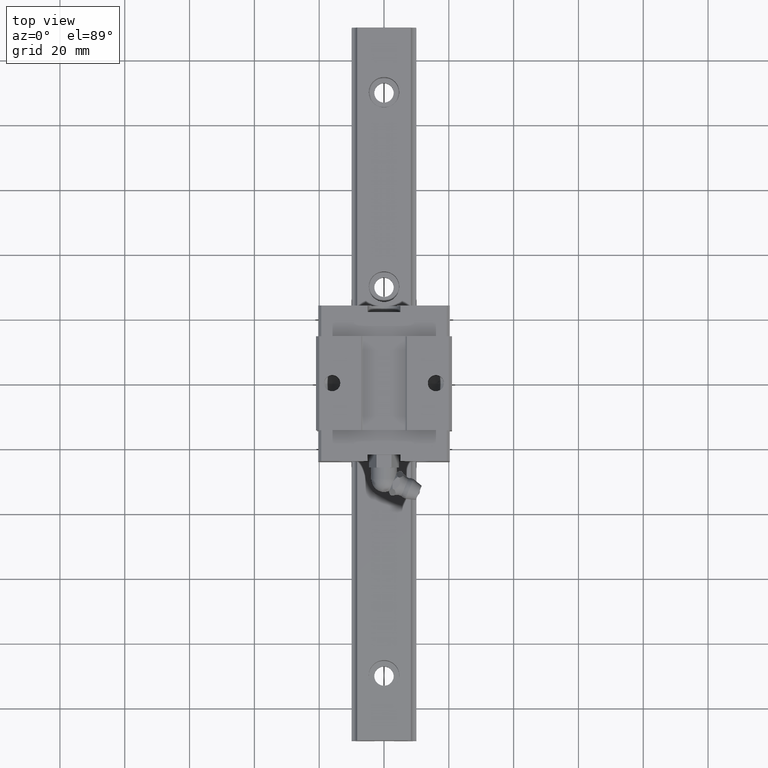
[diagram: clean part render]
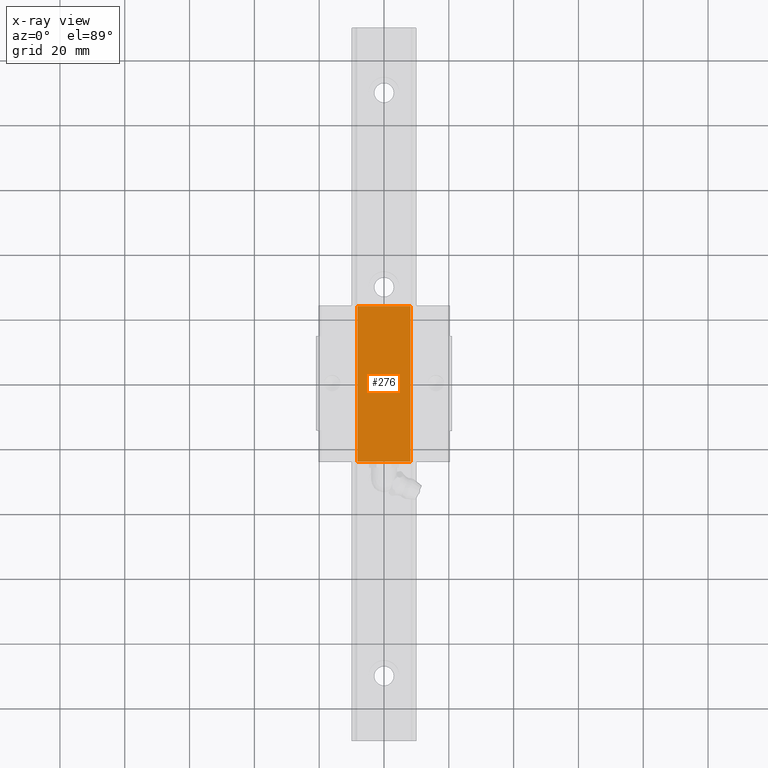
[diagram: x-ray — body ghosted, one internal face saturated and labeled with its STEP entity id]
A machine part, top view, then the same camera in x-ray: the body is ghosted and one INTERNAL B-rep face — a face not visible from any outside direction — is saturated and labeled: STEP entity #276.
In plain terms, the highlighted planar face has unit normal (0, 0, -1).
Its self-contained STEP definition (entity closure, byte-faithful):
#276=ADVANCED_FACE('',(#577),#578,.T.);
#577=FACE_OUTER_BOUND('',#963,.T.);
#578=PLANE('',#964);
#963=EDGE_LOOP('',(#2073,#2074,#2075,#2076));
#964=AXIS2_PLACEMENT_3D('',#2077,#2078,#2079);
#2073=ORIENTED_EDGE('',*,*,#3064,.T.);
#2074=ORIENTED_EDGE('',*,*,#3002,.T.);
#2075=ORIENTED_EDGE('',*,*,#3065,.T.);
#2076=ORIENTED_EDGE('',*,*,#3066,.F.);
#2077=CARTESIAN_POINT('',(0.0,110.0,14.400009));
#2078=DIRECTION('',(0.0,0.0,-1.0));
#2079=DIRECTION('',(0.0,-1.0,0.0));
#3002=EDGE_CURVE('',#3705,#3703,#3706,.T.);
#3064=EDGE_CURVE('',#3801,#3705,#3802,.T.);
#3065=EDGE_CURVE('',#3703,#3803,#3804,.T.);
#3066=EDGE_CURVE('',#3801,#3803,#3805,.T.);
#3703=VERTEX_POINT('',#4709);
#3705=VERTEX_POINT('',#4712);
#3706=LINE('',#4713,#4714);
#3801=VERTEX_POINT('',#4860);
#3802=LINE('',#4861,#4862);
#3803=VERTEX_POINT('',#4863);
#3804=LINE('',#4864,#4865);
#3805=LINE('',#4866,#4867);
#4709=CARTESIAN_POINT('',(8.2039487758,-24.0,14.400009));
#4712=CARTESIAN_POINT('',(8.2039487758,24.0,14.400009));
#4713=CARTESIAN_POINT('',(8.2039487758,110.0,14.400009));
#4714=VECTOR('',#5761,1000.0);
#4860=CARTESIAN_POINT('',(-8.2039487758,24.0,14.400009));
#4861=CARTESIAN_POINT('',(10.1449012806,24.0,14.400009));
#4862=VECTOR('',#5843,1000.0);
#4863=CARTESIAN_POINT('',(-8.2039487758,-24.0,14.400009));
#4864=CARTESIAN_POINT('',(10.1449012806,-24.0,14.400009));
#4865=VECTOR('',#5844,1000.0);
#4866=CARTESIAN_POINT('',(-8.2039487758,110.0,14.400009));
#4867=VECTOR('',#5845,1000.0);
#5761=DIRECTION('',(0.0,-1.0,0.0));
#5843=DIRECTION('',(1.0,0.0,0.0));
#5844=DIRECTION('',(-1.0,0.0,0.0));
#5845=DIRECTION('',(0.0,-1.0,0.0));